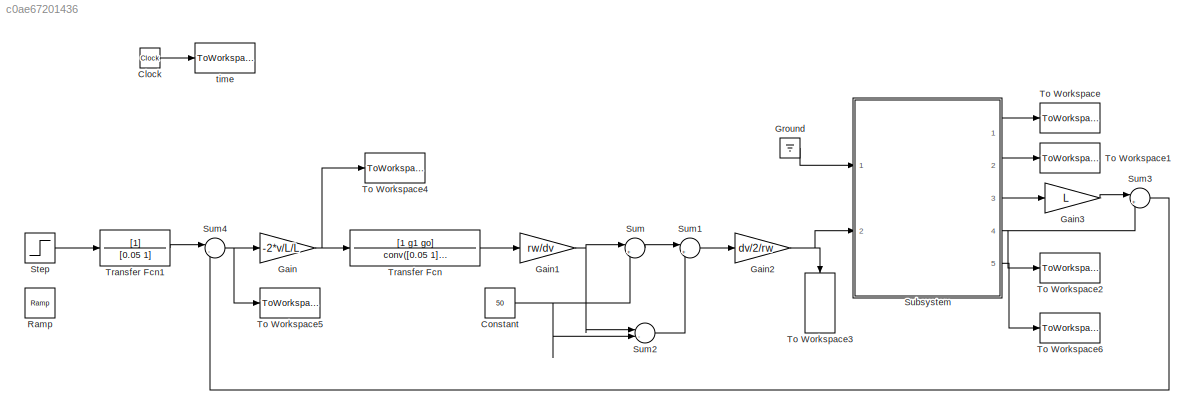
MODEL slx_c0ae67201436
KIND model
CONFIG AbsTol = auto
CONFIG EnableMultiTasking = off
CONFIG FixedStep = auto
CONFIG MaxStep = auto
CONFIG MinStep = auto
CONFIG RelTol = 1e-3
CONFIG SampleTimeConstraint = Unconstrained
CONFIG Solver = FixedStepAuto
CONFIG SolverName = FixedStepAuto
CONFIG StartTime = 0.0
CONFIG StopTime = 10.0
BLOCK [Clock] Clock
  Decimation = 1/mydt
BLOCK [Constant] Constant
  Value = 50
BLOCK [Gain] Gain
  Gain = -2*v/L/L
  OutDataTypeStr = Inherit: Inherit via internal rule
  ParamDataTypeStr = Inherit: Inherit via internal rule
  SaturateOnIntegerOverflow = off
BLOCK [Gain] Gain1
  Gain = rw/dv
  OutDataTypeStr = Inherit: Inherit via internal rule
  ParamDataTypeStr = Inherit: Inherit via internal rule
  SaturateOnIntegerOverflow = off
BLOCK [Gain] Gain2
  Gain = dv/2/rw
  OutDataTypeStr = Inherit: Inherit via internal rule
  ParamDataTypeStr = Inherit: Inherit via internal rule
  SaturateOnIntegerOverflow = off
BLOCK [Gain] Gain3
  Gain = L
  OutDataTypeStr = Inherit: Inherit via internal rule
  ParamDataTypeStr = Inherit: Inherit via internal rule
  SaturateOnIntegerOverflow = off
BLOCK [Ground] Ground
BLOCK [Reference] Ramp  REF=simulink/Sources/Ramp
  Ports = [0, 1]
  SourceBlock = simulink/Sources/Ramp
  SourceProductBaseCode = SL
  SourceProductName = Simulink
  SourceType = Ramp
BLOCK [Step] Step
  SampleTime = mydt
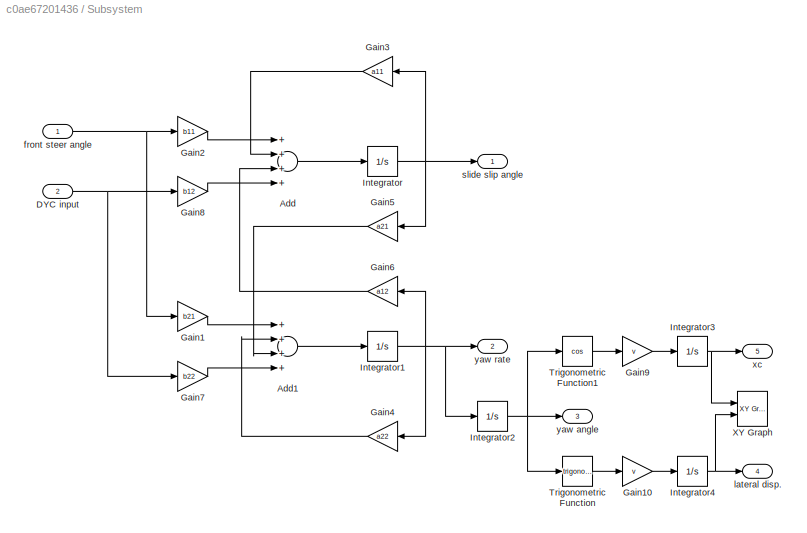
BLOCK [SubSystem] Subsystem
  Ports = [2, 5]
  RequestExecContextInheritance = off
BLOCK [Sum] Subsystem/Add
  InputSameDT = off
  Inputs = ++++
  OutDataTypeStr = Inherit: Inherit via internal rule
  Ports = [4, 1]
  SaturateOnIntegerOverflow = off
BLOCK [Sum] Subsystem/Add1
  InputSameDT = off
  Inputs = ++++
  OutDataTypeStr = Inherit: Inherit via internal rule
  Ports = [4, 1]
  SaturateOnIntegerOverflow = off
BLOCK [Inport] Subsystem/DYC input
  IconDisplay = Port number
  Port = 2
BLOCK [Gain] Subsystem/Gain1
  Gain = b21
  OutDataTypeStr = Inherit: Inherit via internal rule
  ParamDataTypeStr = Inherit: Inherit via internal rule
  SaturateOnIntegerOverflow = off
BLOCK [Gain] Subsystem/Gain10
  Gain = v
  OutDataTypeStr = Inherit: Inherit via internal rule
  ParamDataTypeStr = Inherit: Inherit via internal rule
  SaturateOnIntegerOverflow = off
BLOCK [Gain] Subsystem/Gain2
  Gain = b11
  OutDataTypeStr = Inherit: Inherit via internal rule
  ParamDataTypeStr = Inherit: Inherit via internal rule
  SaturateOnIntegerOverflow = off
BLOCK [Gain] Subsystem/Gain3
  Gain = a11
  OutDataTypeStr = Inherit: Inherit via internal rule
  ParamDataTypeStr = Inherit: Inherit via internal rule
  SaturateOnIntegerOverflow = off
BLOCK [Gain] Subsystem/Gain4
  Gain = a22
  OutDataTypeStr = Inherit: Inherit via internal rule
  ParamDataTypeStr = Inherit: Inherit via internal rule
  SaturateOnIntegerOverflow = off
BLOCK [Gain] Subsystem/Gain5
  Gain = a21
  OutDataTypeStr = Inherit: Inherit via internal rule
  ParamDataTypeStr = Inherit: Inherit via internal rule
  SaturateOnIntegerOverflow = off
BLOCK [Gain] Subsystem/Gain6
  Gain = a12
  OutDataTypeStr = Inherit: Inherit via internal rule
  ParamDataTypeStr = Inherit: Inherit via internal rule
  SaturateOnIntegerOverflow = off
BLOCK [Gain] Subsystem/Gain7
  Gain = b22
  OutDataTypeStr = Inherit: Inherit via internal rule
  ParamDataTypeStr = Inherit: Inherit via internal rule
  SaturateOnIntegerOverflow = off
BLOCK [Gain] Subsystem/Gain8
  Gain = b12
  OutDataTypeStr = Inherit: Inherit via internal rule
  ParamDataTypeStr = Inherit: Inherit via internal rule
  SaturateOnIntegerOverflow = off
BLOCK [Gain] Subsystem/Gain9
  Gain = v
  OutDataTypeStr = Inherit: Inherit via internal rule
  ParamDataTypeStr = Inherit: Inherit via internal rule
  SaturateOnIntegerOverflow = off
BLOCK [Integrator] Subsystem/Integrator
  Ports = [1, 1]
BLOCK [Integrator] Subsystem/Integrator1
  Ports = [1, 1]
BLOCK [Integrator] Subsystem/Integrator2
  Ports = [1, 1]
BLOCK [Integrator] Subsystem/Integrator3
  Ports = [1, 1]
BLOCK [Integrator] Subsystem/Integrator4
  Ports = [1, 1]
BLOCK [Trigonometry] Subsystem/Trigonometric Function
  Ports = [1, 1]
BLOCK [Trigonometry] Subsystem/Trigonometric Function1
  Operator = cos
  Ports = [1, 1]
BLOCK [Reference] Subsystem/XY Graph  REF=simulink/Sinks/XY Graph
  Ports = [2]
  SourceBlock = simulink/Sinks/XY Graph
  SourceProductBaseCode = SL
  SourceProductName = Simulink
  SourceType = XY scope.
BLOCK [Inport] Subsystem/front steer angle
  IconDisplay = Port number
BLOCK [Outport] Subsystem/lateral disp. 
  IconDisplay = Port number
  Port = 4
BLOCK [Outport] Subsystem/slide slip angle
  IconDisplay = Port number
BLOCK [Outport] Subsystem/xc 
  IconDisplay = Port number
  Port = 5
BLOCK [Outport] Subsystem/yaw angle
  IconDisplay = Port number
  Port = 3
BLOCK [Outport] Subsystem/yaw rate
  IconDisplay = Port number
  Port = 2
BLOCK [Sum] Sum
  IconShape = round
  InputSameDT = off
  Inputs = |++
  OutDataTypeStr = Inherit: Inherit via internal rule
  Ports = [2, 1]
  SaturateOnIntegerOverflow = off
BLOCK [Sum] Sum1
  IconShape = round
  InputSameDT = off
  Inputs = |+-
  OutDataTypeStr = Inherit: Inherit via internal rule
  Ports = [2, 1]
  SaturateOnIntegerOverflow = off
BLOCK [Sum] Sum2
  IconShape = round
  InputSameDT = off
  Inputs = |-+
  OutDataTypeStr = Inherit: Inherit via internal rule
  Ports = [2, 1]
  SaturateOnIntegerOverflow = off
BLOCK [Sum] Sum3
  IconShape = round
  InputSameDT = off
  Inputs = |++
  OutDataTypeStr = Inherit: Inherit via internal rule
  Ports = [2, 1]
  SaturateOnIntegerOverflow = off
BLOCK [Sum] Sum4
  IconShape = round
  InputSameDT = off
  Inputs = |-+
  OutDataTypeStr = Inherit: Inherit via internal rule
  Ports = [2, 1]
  SaturateOnIntegerOverflow = off
BLOCK [ToWorkspace] To Workspace
  FixptAsFi = on
  MaxDataPoints = inf
  Ports = [1]
  SampleTime = -1
  Save2DSignal = 3-D array (concatenate along third dimension)
  SaveFormat = Timeseries
  VariableName = beta
BLOCK [ToWorkspace] To Workspace1
  FixptAsFi = on
  MaxDataPoints = inf
  Ports = [1]
  SampleTime = -1
  Save2DSignal = 3-D array (concatenate along third dimension)
  SaveFormat = Timeseries
  VariableName = gamma
BLOCK [ToWorkspace] To Workspace2
  FixptAsFi = on
  MaxDataPoints = inf
  Ports = [1]
  SampleTime = -1
  Save2DSignal = 3-D array (concatenate along third dimension)
  SaveFormat = Timeseries
  VariableName = yc
BLOCK [ToWorkspace] To Workspace3
  FixptAsFi = on
  MaxDataPoints = inf
  Ports = [1]
  SampleTime = -1
  Save2DSignal = 3-D array (concatenate along third dimension)
  SaveFormat = Timeseries
  VariableName = dyc
BLOCK [ToWorkspace] To Workspace4
  FixptAsFi = on
  MaxDataPoints = inf
  Ports = [1]
  SampleTime = -1
  Save2DSignal = 3-D array (concatenate along third dimension)
  SaveFormat = Timeseries
  VariableName = gammad
BLOCK [ToWorkspace] To Workspace5
  FixptAsFi = on
  MaxDataPoints = inf
  Ports = [1]
  SampleTime = -1
  Save2DSignal = 3-D array (concatenate along third dimension)
  SaveFormat = Timeseries
  VariableName = ysr
BLOCK [ToWorkspace] To Workspace6
  FixptAsFi = on
  MaxDataPoints = inf
  Ports = [1]
  SampleTime = -1
  Save2DSignal = 3-D array (concatenate along third dimension)
  SaveFormat = Timeseries
  VariableName = xc
BLOCK [TransferFcn] Transfer Fcn
  Denominator = conv([0.05 1],[hm1 hmo])
  Numerator = [1 g1 go]
BLOCK [TransferFcn] Transfer Fcn1
  Denominator = [0.05 1]
BLOCK [ToWorkspace] time
  FixptAsFi = on
  MaxDataPoints = inf
  Ports = [1]
  SampleTime = -1
  Save2DSignal = 3-D array (concatenate along third dimension)
  SaveFormat = Timeseries
  VariableName = t
LINE Clock:1 -> time:1
NET Constant:1 -> Sum2:2, Sum:2
NET Gain1:1 -> Sum2:1, Sum:1
NET Gain2:1 -> Subsystem:2, To Workspace3:1
LINE Gain3:1 -> Sum3:1
NET Gain:1 -> To Workspace4:1, Transfer Fcn:1
LINE Ground:1 -> Subsystem:1
LINE Step:1 -> Transfer Fcn1:1
LINE Subsystem/Add1:1 -> Subsystem/Integrator1:1
LINE Subsystem/Add:1 -> Subsystem/Integrator:1
NET Subsystem/DYC input:1 -> Subsystem/Gain7:1, Subsystem/Gain8:1
LINE Subsystem/Gain10:1 -> Subsystem/Integrator4:1
LINE Subsystem/Gain1:1 -> Subsystem/Add1:1
LINE Subsystem/Gain2:1 -> Subsystem/Add:1
LINE Subsystem/Gain3:1 -> Subsystem/Add:2
LINE Subsystem/Gain4:1 -> Subsystem/Add1:2
LINE Subsystem/Gain5:1 -> Subsystem/Add1:3
LINE Subsystem/Gain6:1 -> Subsystem/Add:3
LINE Subsystem/Gain7:1 -> Subsystem/Add1:4
LINE Subsystem/Gain8:1 -> Subsystem/Add:4
LINE Subsystem/Gain9:1 -> Subsystem/Integrator3:1
NET Subsystem/Integrator1:1 -> Subsystem/Gain4:1, Subsystem/Gain6:1, Subsystem/Integrator2:1, Subsystem/yaw rate:1
NET Subsystem/Integrator2:1 -> Subsystem/Trigonometric Function1:1, Subsystem/Trigonometric Function:1, Subsystem/yaw angle:1
NET Subsystem/Integrator3:1 -> Subsystem/XY Graph:1, Subsystem/xc :1
NET Subsystem/Integrator4:1 -> Subsystem/XY Graph:2, Subsystem/lateral disp. :1
NET Subsystem/Integrator:1 -> Subsystem/Gain3:1, Subsystem/Gain5:1, Subsystem/slide slip angle:1
LINE Subsystem/Trigonometric Function1:1 -> Subsystem/Gain9:1
LINE Subsystem/Trigonometric Function:1 -> Subsystem/Gain10:1
NET Subsystem/front steer angle:1 -> Subsystem/Gain1:1, Subsystem/Gain2:1
LINE Subsystem:1 -> To Workspace:1
LINE Subsystem:2 -> To Workspace1:1
LINE Subsystem:3 -> Gain3:1
NET Subsystem:4 -> Sum3:2, To Workspace2:1
LINE Subsystem:5 -> To Workspace6:1
LINE Sum1:1 -> Gain2:1
LINE Sum2:1 -> Sum1:2
LINE Sum3:1 -> Sum4:2
NET Sum4:1 -> Gain:1, To Workspace5:1
LINE Sum:1 -> Sum1:1
LINE Transfer Fcn1:1 -> Sum4:1
LINE Transfer Fcn:1 -> Gain1:1
note: NET lines group one-source signal fan-out (src -> all destinations, sorted); 1:1 wires keep LINE
